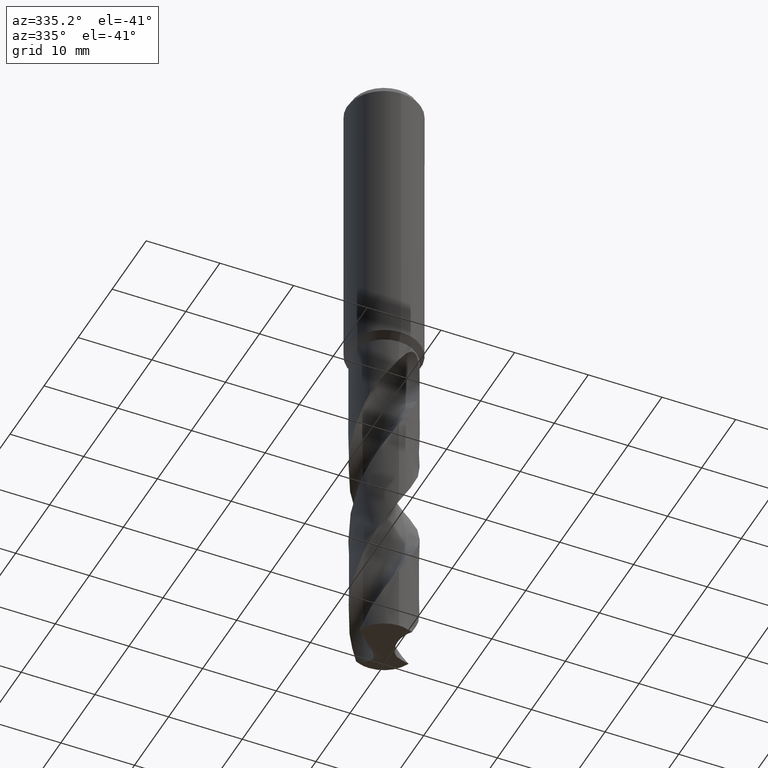
[diagram: clean part render]
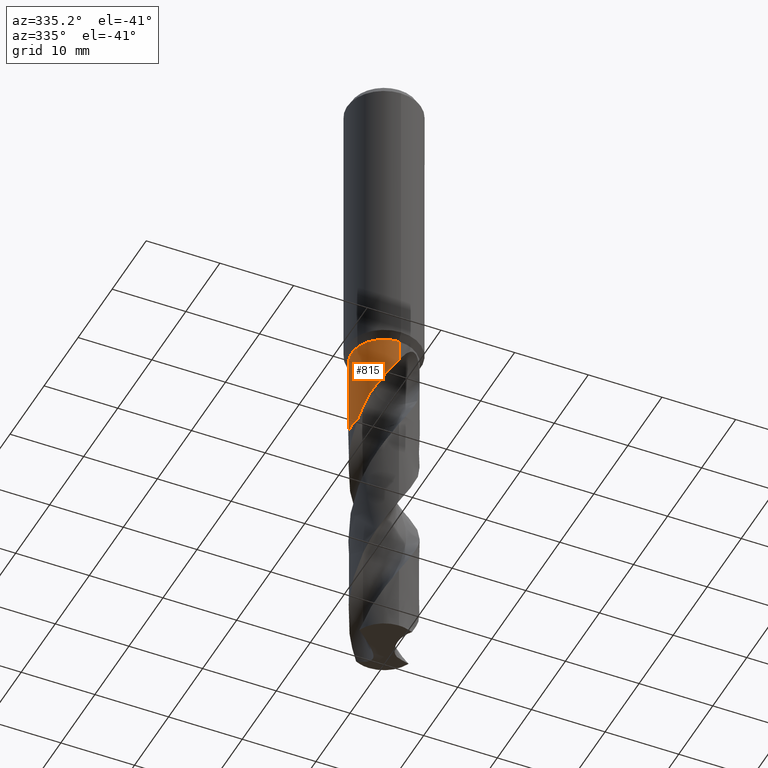
[diagram: same view with one face highlighted and labeled with its STEP entity id]
A machine part, auxiliary view. The second image highlights one B-rep face of the part: STEP entity #815.
In plain terms, the highlighted cylindrical surface (edge-blend (fillet) strip) has radius 4.4 mm, axis along (-0, -0, 1).
Its self-contained STEP definition (entity closure, byte-faithful):
#323=VERTEX_POINT('',#887);
#341=VERTEX_POINT('',#907);
#361=VERTEX_POINT('',#931);
#395=EDGE_CURVE('',#323,#341,#968,.T.);
#505=VERTEX_POINT('',#1084);
#509=VERTEX_POINT('',#1088);
#573=EDGE_CURVE('',#509,#771,#1159,.T.);
#589=EDGE_CURVE('',#341,#509,#1176,.T.);
#639=EDGE_CURVE('',#709,#739,#1229,.T.);
#709=VERTEX_POINT('',#1309);
#715=EDGE_CURVE('',#825,#323,#1316,.T.);
#739=VERTEX_POINT('',#1342);
#763=EDGE_CURVE('',#825,#739,#1371,.T.);
#771=VERTEX_POINT('',#1380);
#773=EDGE_CURVE('',#361,#709,#1382,.T.);
#811=EDGE_CURVE('',#505,#361,#1422,.T.);
#815=ADVANCED_FACE('',(#1426),#1427,.T.);
#825=VERTEX_POINT('',#1437);
#845=EDGE_CURVE('',#771,#505,#1459,.T.);
#887=CARTESIAN_POINT('',(-2.80374486055089,-3.39101972228628,-48.6578));
#907=CARTESIAN_POINT('',(1.30544760114718E-012,-4.4,-43.9806989142758));
#931=CARTESIAN_POINT('',(-3.58002551848704,2.5580104157297,-46.2484469929052));
#968=B_SPLINE_CURVE_WITH_KNOTS('',3,(#4300,#4301,#4302,#4303,#4304,#4305,#4306,#4307,#4308,#4309,#4310,#4311,#4312,#4313,#4314,#4315,#4316,#4317,#4318,#4319,#4320,#4321,#4322,#4323,#4324,#4325,#4326,#4327,#4328,#4329),.UNSPECIFIED.,.F.,.F.,(4,2,2,2,2,2,2,2,2,2,2,2,2,2,4),(0.0,2.15575313888059,3.3328447358278,4.39899348881967,5.63760174678728,7.12545374593655,8.41500043042626,8.99937898128968,9.42648841876533,9.8306588457986,10.3433731229198,11.0934949025018,12.1598812119485,12.8577163387034,13.5910936483948),.UNSPECIFIED.);
#1084=CARTESIAN_POINT('',(-1.29923035220927E-012,4.4,-43.9806989142759));
#1088=CARTESIAN_POINT('',(5.38826795681846E-016,-4.4,-41.0392304845413));
#1159=CIRCLE('',#5151,4.4);
#1176=LINE('',#5247,#5248);
#1229=B_SPLINE_CURVE_WITH_KNOTS('',3,(#5422,#5423,#5424,#5425,#5426,#5427,#5428,#5429),.UNSPECIFIED.,.F.,.F.,(4,2,2,4),(0.0,1.10176570355419,2.10534020157811,4.43657203464516),.UNSPECIFIED.);
#1309=CARTESIAN_POINT('',(-3.05834030680717,3.16331385856014,-48.6578));
#1316=B_SPLINE_CURVE_WITH_KNOTS('',3,(#6254,#6255,#6256,#6257,#6258,#6259,#6260,#6261,#6262,#6263),.UNSPECIFIED.,.F.,.F.,(4,2,2,2,4),(0.0,2.48566686617898,3.0874494390052,4.00087552836364,4.88603176018512),.UNSPECIFIED.);
#1342=CARTESIAN_POINT('',(-0.924055888968827,4.30187409323681,-52.9));
#1371=CIRCLE('',#7742,4.4);
#1380=CARTESIAN_POINT('',(0.0,4.4,-41.0392304845413));
#1382=B_SPLINE_CURVE_WITH_KNOTS('',3,(#7774,#7775,#7776,#7777),.UNSPECIFIED.,.F.,.F.,(4,4),(0.0,2.52876756616793),.UNSPECIFIED.);
#1422=B_SPLINE_CURVE_WITH_KNOTS('',3,(#8122,#8123,#8124,#8125,#8126,#8127,#8128,#8129,#8130,#8131,#8132,#8133,#8134,#8135,#8136,#8137,#8138,#8139,#8140,#8141,#8142,#8143,#8144,#8145,#8146,#8147,#8148,#8149,#8150,#8151),.UNSPECIFIED.,.F.,.F.,(4,2,2,2,2,2,2,2,2,2,2,2,2,2,4),(0.0,2.15575313888055,3.33284473582783,4.39899348881997,5.63760174678789,7.12545374593737,8.41500043042723,8.99937898129075,9.4264884187666,9.8306588458001,10.3433731229215,11.0934949025042,12.1598812119526,12.8577163387087,13.5910936484015),.UNSPECIFIED.);
#1426=FACE_OUTER_BOUND('',#8159,.T.);
#1427=CYLINDRICAL_SURFACE('',#8160,4.4);
#1437=CARTESIAN_POINT('',(-4.2087202028539,-1.28322806004601,-52.9));
#1459=LINE('',#8544,#8545);
#4300=CARTESIAN_POINT('',(-2.80374486055089,-3.39101972228628,-48.6578));
#4301=CARTESIAN_POINT('',(-2.51350494731927,-3.63099434104233,-48.0458061391126));
#4302=CARTESIAN_POINT('',(-2.17979483710908,-3.84431509835622,-47.475230373449));
#4303=CARTESIAN_POINT('',(-1.59790390863066,-4.10578444379897,-46.5220445771287));
#4304=CARTESIAN_POINT('',(-1.38851221785647,-4.18099929289326,-46.1866817704439));
#4305=CARTESIAN_POINT('',(-0.983156375472417,-4.29341047373774,-45.5375063782041));
#4306=CARTESIAN_POINT('',(-0.78900212564225,-4.33312507625318,-45.2267196876942));
#4307=CARTESIAN_POINT('',(-0.368739975777152,-4.39044303258426,-44.5568919256811));
#4308=CARTESIAN_POINT('',(-0.139121621929856,-4.40389969584931,-44.192607771954));
#4309=CARTESIAN_POINT('',(0.370802025101336,-4.39317357640931,-43.4132836749413));
#4310=CARTESIAN_POINT('',(0.673135252495525,-4.35999806353259,-42.9698397246683));
#4311=CARTESIAN_POINT('',(1.25614576165956,-4.22601958514953,-42.238631296681));
#4312=CARTESIAN_POINT('',(1.57870209371613,-4.12394494139919,-41.881830271775));
#4313=CARTESIAN_POINT('',(2.0668879894835,-3.88800265043549,-41.5477219620063));
#4314=CARTESIAN_POINT('',(2.22848079933628,-3.7989289828202,-41.4651504079955));
#4315=CARTESIAN_POINT('',(2.51162854133555,-3.61552411826481,-41.4017206984103));
#4316=CARTESIAN_POINT('',(2.62776332521678,-3.53200017117508,-41.4005363425812));
#4317=CARTESIAN_POINT('',(2.84407062843263,-3.35995828412179,-41.4560506775219));
#4318=CARTESIAN_POINT('',(2.93867264768447,-3.27686549145371,-41.5081002657181));
#4319=CARTESIAN_POINT('',(3.13118670528476,-3.09477413472974,-41.6709574130903));
#4320=CARTESIAN_POINT('',(3.22025241957449,-3.00040982913681,-41.7911981049493));
#4321=CARTESIAN_POINT('',(3.40268779839799,-2.79435847422547,-42.1204544427671));
#4322=CARTESIAN_POINT('',(3.48988827452864,-2.68214878213366,-42.3646653384563));
#4323=CARTESIAN_POINT('',(3.65386553697139,-2.45683316401346,-43.0479402765374));
#4324=CARTESIAN_POINT('',(3.71314710305357,-2.36085957687008,-43.5345595436487));
#4325=CARTESIAN_POINT('',(3.74248904481271,-2.31392633598291,-44.4351721847013));
#4326=CARTESIAN_POINT('',(3.73558990578627,-2.32536574975377,-44.7938407452289));
#4327=CARTESIAN_POINT('',(3.6868604368136,-2.40192057397114,-45.5217587379512));
#4328=CARTESIAN_POINT('',(3.64335080217984,-2.46938445463447,-45.8882683668546));
#4329=CARTESIAN_POINT('',(3.58002551848705,-2.55801041572969,-46.2484469929052));
#5151=AXIS2_PLACEMENT_3D('',#8855,#8856,#8857);
#5247=CARTESIAN_POINT('',(5.38826795681846E-016,-4.4,-46.9696152422707));
#5248=VECTOR('',#8872,1.0);
#5422=CARTESIAN_POINT('',(-3.05834030680717,3.16331385856014,-48.6578));
#5423=CARTESIAN_POINT('',(-2.93267895592468,3.28480517797878,-48.9807945688107));
#5424=CARTESIAN_POINT('',(-2.796198561153,3.40284049559091,-49.3043052046853));
#5425=CARTESIAN_POINT('',(-2.4980139266773,3.62649918541134,-49.9374574224658));
#5426=CARTESIAN_POINT('',(-2.34605158578345,3.72739250971819,-50.2418514294194));
#5427=CARTESIAN_POINT('',(-1.7875823685537,4.045544403288,-51.3450724817204));
#5428=CARTESIAN_POINT('',(-1.36464891216399,4.20723334622791,-52.1237789334262));
#5429=CARTESIAN_POINT('',(-0.924055888968836,4.30187409323679,-52.9));
#6254=CARTESIAN_POINT('',(-4.20872020285389,-1.28322806004602,-52.9));
#6255=CARTESIAN_POINT('',(-4.08713835939531,-1.68199113014751,-52.1839620903115));
#6256=CARTESIAN_POINT('',(-3.91148991743805,-2.05546455313076,-51.5004117974518));
#6257=CARTESIAN_POINT('',(-3.63702050621687,-2.47825234317867,-50.6012308444808));
#6258=CARTESIAN_POINT('',(-3.58149050293945,-2.55775237463445,-50.4257156638391));
#6259=CARTESIAN_POINT('',(-3.43711622326536,-2.75088391707516,-49.9808670016178));
#6260=CARTESIAN_POINT('',(-3.36458646867802,-2.84154355648209,-49.7462666740698));
#6261=CARTESIAN_POINT('',(-3.11586218435968,-3.11192758228505,-49.1735812260098));
#6262=CARTESIAN_POINT('',(-2.97264437128442,-3.25137112866222,-48.9105072074403));
#6263=CARTESIAN_POINT('',(-2.80374486055088,-3.39101972228628,-48.6578));
#7742=AXIS2_PLACEMENT_3D('',#9090,#9091,#9092);
#7774=CARTESIAN_POINT('',(-3.58002551853966,2.55801041565606,-46.2484469929342));
#7775=CARTESIAN_POINT('',(-3.43817314504859,2.75653780000731,-47.055282267316));
#7776=CARTESIAN_POINT('',(-3.26720311961496,2.96138209093783,-47.8669189851059));
#7777=CARTESIAN_POINT('',(-3.05834030680717,3.16331385856014,-48.6578));
#8122=CARTESIAN_POINT('',(2.80374486055088,3.39101972228628,-48.6578));
#8123=CARTESIAN_POINT('',(2.51350494731927,3.63099434104232,-48.0458061391126));
#8124=CARTESIAN_POINT('',(2.17979483710909,3.84431509835622,-47.4752303734491));
#8125=CARTESIAN_POINT('',(1.59790390863063,4.10578444379899,-46.5220445771286));
#8126=CARTESIAN_POINT('',(1.38851221785643,4.18099929289327,-46.1866817704438));
#8127=CARTESIAN_POINT('',(0.983156375472417,4.29341047373774,-45.5375063782041));
#8128=CARTESIAN_POINT('',(0.789002125642251,4.33312507625318,-45.2267196876942));
#8129=CARTESIAN_POINT('',(0.368739975777151,4.39044303258426,-44.5568919256811));
#8130=CARTESIAN_POINT('',(0.139121621929852,4.40389969584931,-44.192607771954));
#8131=CARTESIAN_POINT('',(-0.370802025101311,4.39317357640931,-43.4132836749414));
#8132=CARTESIAN_POINT('',(-0.67313525249552,4.3599980635326,-42.9698397246683));
#8133=CARTESIAN_POINT('',(-1.25614576165957,4.22601958514953,-42.238631296681));
#8134=CARTESIAN_POINT('',(-1.57870209371613,4.12394494139918,-41.881830271775));
#8135=CARTESIAN_POINT('',(-2.06688798948351,3.88800265043549,-41.5477219620063));
#8136=CARTESIAN_POINT('',(-2.22848079933628,3.7989289828202,-41.4651504079955));
#8137=CARTESIAN_POINT('',(-2.51162854133558,3.6155241182648,-41.4017206984103));
#8138=CARTESIAN_POINT('',(-2.62776332521679,3.53200017117507,-41.4005363425812));
#8139=CARTESIAN_POINT('',(-2.84407062843264,3.35995828412179,-41.4560506775219));
#8140=CARTESIAN_POINT('',(-2.93867264768447,3.27686549145371,-41.5081002657181));
#8141=CARTESIAN_POINT('',(-3.13118670528475,3.09477413472975,-41.6709574130903));
#8142=CARTESIAN_POINT('',(-3.22025241957447,3.00040982913683,-41.7911981049493));
#8143=CARTESIAN_POINT('',(-3.40268779839804,2.79435847422541,-42.1204544427672));
#8144=CARTESIAN_POINT('',(-3.48988827452868,2.68214878213362,-42.3646653384565));
#8145=CARTESIAN_POINT('',(-3.65386553697142,2.45683316401343,-43.0479402765375));
#8146=CARTESIAN_POINT('',(-3.71314710305357,2.36085957687008,-43.5345595436488));
#8147=CARTESIAN_POINT('',(-3.74248904481271,2.31392633598291,-44.4351721847013));
#8148=CARTESIAN_POINT('',(-3.73558990578626,2.32536574975377,-44.7938407452289));
#8149=CARTESIAN_POINT('',(-3.6868604368136,2.40192057397115,-45.5217587379512));
#8150=CARTESIAN_POINT('',(-3.64335080217983,2.46938445463448,-45.8882683668546));
#8151=CARTESIAN_POINT('',(-3.58002551848704,2.5580104157297,-46.2484469929052));
#8159=EDGE_LOOP('',(#9127,#9128,#9129,#9130,#9131,#9132,#9133,#9134,#9135));
#8160=AXIS2_PLACEMENT_3D('',#9136,#9137,#9138);
#8544=CARTESIAN_POINT('',(-5.38826795681846E-016,4.4,-46.9696152422707));
#8545=VECTOR('',#9164,1.0);
#8855=CARTESIAN_POINT('',(0.0,0.0,-41.0392304845413));
#8856=DIRECTION('',(0.0,0.0,-1.0));
#8857=DIRECTION('',(0.0,1.0,0.0));
#8872=DIRECTION('',(-0.0,-0.0,1.0));
#9090=CARTESIAN_POINT('',(0.0,0.0,-52.9));
#9091=DIRECTION('',(0.0,0.0,-1.0));
#9092=DIRECTION('',(0.0,1.0,0.0));
#9127=ORIENTED_EDGE('',*,*,#845,.T.);
#9128=ORIENTED_EDGE('',*,*,#811,.T.);
#9129=ORIENTED_EDGE('',*,*,#773,.T.);
#9130=ORIENTED_EDGE('',*,*,#639,.T.);
#9131=ORIENTED_EDGE('',*,*,#763,.F.);
#9132=ORIENTED_EDGE('',*,*,#715,.T.);
#9133=ORIENTED_EDGE('',*,*,#395,.T.);
#9134=ORIENTED_EDGE('',*,*,#589,.T.);
#9135=ORIENTED_EDGE('',*,*,#573,.T.);
#9136=CARTESIAN_POINT('',(0.0,0.0,-46.9696152422707));
#9137=DIRECTION('',(-0.0,-0.0,1.0));
#9138=DIRECTION('',(0.0,1.0,0.0));
#9164=DIRECTION('',(0.0,0.0,-1.0));